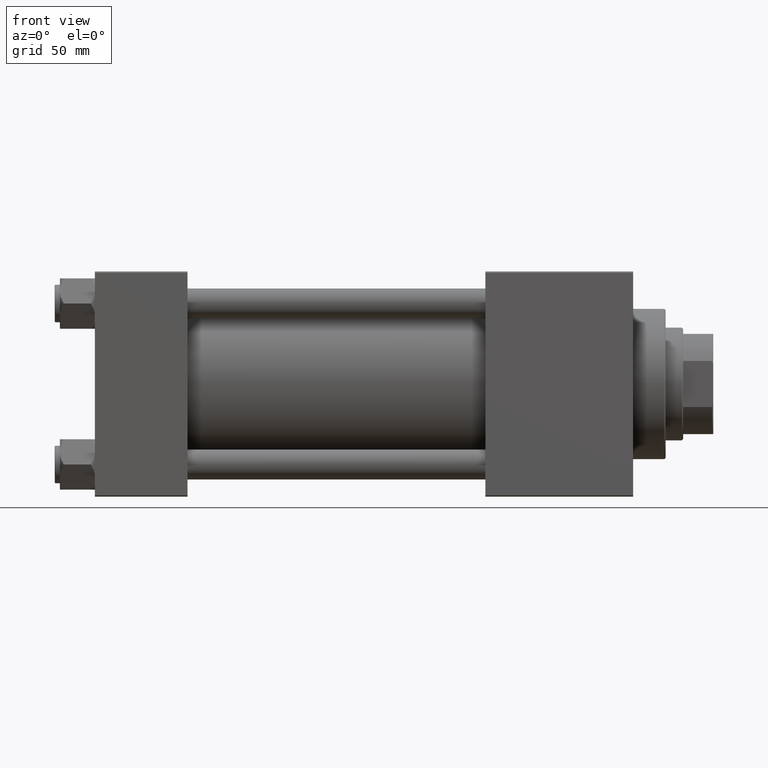
[diagram: clean part render]
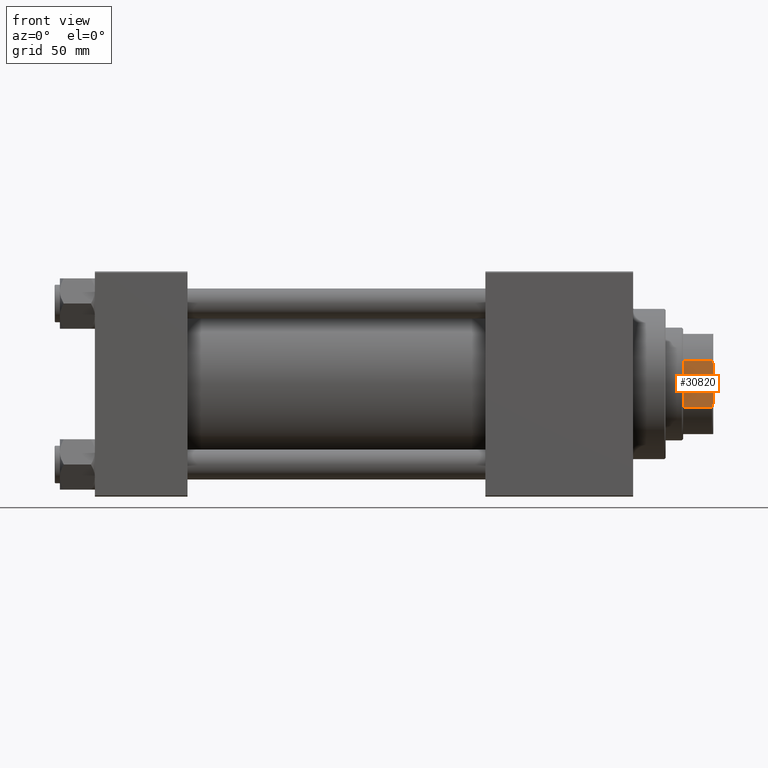
[diagram: same view with one face highlighted and labeled with its STEP entity id]
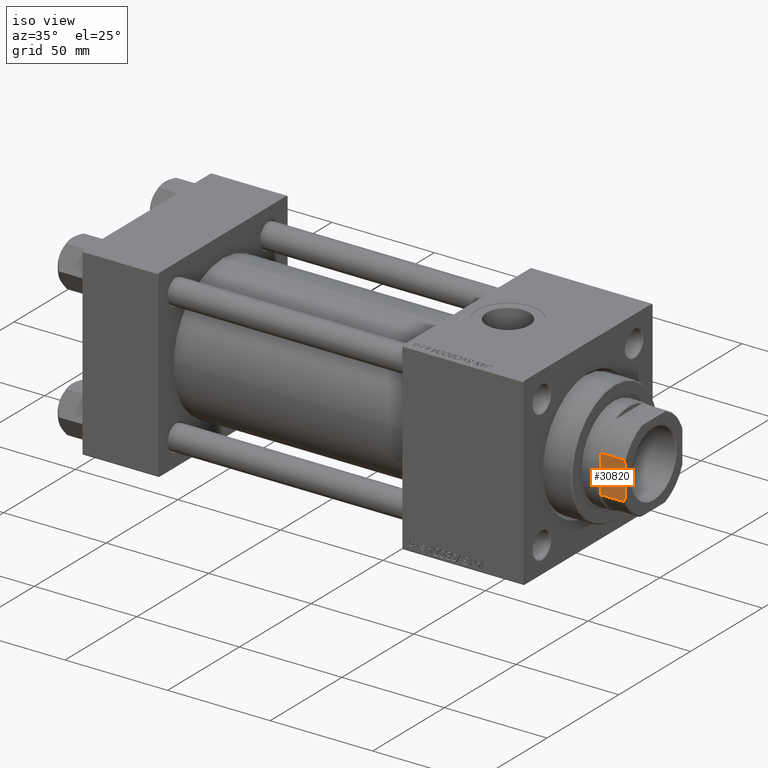
[diagram: same view with one face highlighted and labeled with its STEP entity id]
A machine part, front view. The second image highlights one B-rep face of the part: STEP entity #30820.
A second angle (iso view) of the same face is appended — the face is thin or edge-on in the first view.
In plain terms, the highlighted planar face has unit normal (0, 1, 0).
Its self-contained STEP definition (entity closure, byte-faithful):
#1905 = ORIENTED_EDGE ( 'NONE', *, *, #33054, .T. ) ;
#3045 = CARTESIAN_POINT ( 'NONE',  ( 9.165151389911670776, 20.00000000000000000, 198.0000000000001137 ) ) ;
#3239 = EDGE_LOOP ( 'NONE', ( #46034, #25699, #24217, #12055, #8752, #1905 ) ) ;
#4533 = LINE ( 'NONE', #40922, #31973 ) ;
#4605 = VECTOR ( 'NONE', #45751, 1000.000000000000000 ) ;
#6495 = CARTESIAN_POINT ( 'NONE',  ( -7.889866919029960179, 20.00000000000000355, 210.0000000000000284 ) ) ;
#6799 = CARTESIAN_POINT ( 'NONE',  ( -8.743570658524422612, 20.00000000000000355, 209.6756296011925542 ) ) ;
#6870 = DIRECTION ( 'NONE',  ( -1.000000000000000000, -0.000000000000000000, -0.000000000000000000 ) ) ;
#7429 = AXIS2_PLACEMENT_3D ( 'NONE', #17806, #10699, #33996 ) ;
#8752 = ORIENTED_EDGE ( 'NONE', *, *, #44856, .T. ) ;
#10668 = CARTESIAN_POINT ( 'NONE',  ( -20.00000000000000711, 20.00000000000000355, 198.0000000000000000 ) ) ;
#10687 = VERTEX_POINT ( 'NONE', #27938 ) ;
#10699 = DIRECTION ( 'NONE',  ( 0.000000000000000000, -1.000000000000000000, 0.000000000000000000 ) ) ;
#11390 = CARTESIAN_POINT ( 'NONE',  ( -20.00000000000000711, 20.00000000000000355, 210.0000000000000284 ) ) ;
#11934 = B_SPLINE_CURVE_WITH_KNOTS ( 'NONE', 3,
 ( #13909, #6799, #33908, #41024 ),
 .UNSPECIFIED., .F., .F.,
 ( 4, 4 ),
 ( 0.000000000000000000, 0.001369799431183980334 ),
 .UNSPECIFIED. ) ;
#12055 = ORIENTED_EDGE ( 'NONE', *, *, #23609, .T. ) ;
#12150 = LINE ( 'NONE', #11390, #28505 ) ;
#12652 = DIRECTION ( 'NONE',  ( -0.000000000000000000, -0.000000000000000000, 1.000000000000000000 ) ) ;
#13909 = CARTESIAN_POINT ( 'NONE',  ( -9.165151389911670776, 20.00000000000000355, 209.5000000000001137 ) ) ;
#17668 = EDGE_CURVE ( 'NONE', #37155, #10687, #19117, .T. ) ;
#17806 = CARTESIAN_POINT ( 'NONE',  ( -20.00000000000000711, 20.00000000000000355, 210.0000000000000284 ) ) ;
#18525 = LINE ( 'NONE', #10668, #24165 ) ;
#19117 = LINE ( 'NONE', #30258, #4605 ) ;
#19191 = VERTEX_POINT ( 'NONE', #33971 ) ;
#20377 = CARTESIAN_POINT ( 'NONE',  ( 8.743570658524438599, 20.00000000000000355, 209.6756296011925542 ) ) ;
#22413 = CARTESIAN_POINT ( 'NONE',  ( 8.318618722654566255, 20.00000000000000355, 209.8426607129352703 ) ) ;
#23609 = EDGE_CURVE ( 'NONE', #37155, #19191, #18525, .T. ) ;
#24165 = VECTOR ( 'NONE', #6870, 1000.000000000000000 ) ;
#24217 = ORIENTED_EDGE ( 'NONE', *, *, #17668, .F. ) ;
#25699 = ORIENTED_EDGE ( 'NONE', *, *, #37872, .T. ) ;
#26218 = CARTESIAN_POINT ( 'NONE',  ( 7.889866919029989489, 20.00000000000000355, 210.0000000000000284 ) ) ;
#27938 = CARTESIAN_POINT ( 'NONE',  ( 9.165151389911672553, 20.00000000000000355, 209.5000000000001137 ) ) ;
#28505 = VECTOR ( 'NONE', #34693, 1000.000000000000000 ) ;
#30258 = CARTESIAN_POINT ( 'NONE',  ( 9.165151389911672553, 20.00000000000000355, -0.001000000000001000089 ) ) ;
#30820 = ADVANCED_FACE ( 'NONE', ( #49722 ), #37312, .F. ) ;
#31177 = EDGE_CURVE ( 'NONE', #39205, #42813, #12150, .T. ) ;
#31973 = VECTOR ( 'NONE', #12652, 1000.000000000000000 ) ;
#33054 = EDGE_CURVE ( 'NONE', #49004, #42813, #11934, .T. ) ;
#33908 = CARTESIAN_POINT ( 'NONE',  ( -8.318618722654560926, 20.00000000000000355, 209.8426607129352703 ) ) ;
#33971 = CARTESIAN_POINT ( 'NONE',  ( -9.165151389911667223, 20.00000000000000355, 198.0000000000001137 ) ) ;
#33996 = DIRECTION ( 'NONE',  ( 0.000000000000000000, -0.000000000000000000, -1.000000000000000000 ) ) ;
#34693 = DIRECTION ( 'NONE',  ( -1.000000000000000000, -0.000000000000000000, -0.000000000000000000 ) ) ;
#35835 = CARTESIAN_POINT ( 'NONE',  ( 9.165151389911672553, 20.00000000000000355, 209.5000000000001137 ) ) ;
#37155 = VERTEX_POINT ( 'NONE', #3045 ) ;
#37312 = PLANE ( 'NONE',  #7429 ) ;
#37872 = EDGE_CURVE ( 'NONE', #39205, #10687, #46695, .T. ) ;
#39205 = VERTEX_POINT ( 'NONE', #43400 ) ;
#40922 = CARTESIAN_POINT ( 'NONE',  ( -9.165151389911670776, 20.00000000000000355, -0.001000000000001000089 ) ) ;
#41024 = CARTESIAN_POINT ( 'NONE',  ( -7.889866919029960179, 20.00000000000000355, 210.0000000000000284 ) ) ;
#42813 = VERTEX_POINT ( 'NONE', #6495 ) ;
#43400 = CARTESIAN_POINT ( 'NONE',  ( 7.889866919029989489, 20.00000000000000355, 210.0000000000000284 ) ) ;
#44856 = EDGE_CURVE ( 'NONE', #19191, #49004, #4533, .T. ) ;
#45330 = CARTESIAN_POINT ( 'NONE',  ( -9.165151389911670776, 20.00000000000000355, 209.5000000000001137 ) ) ;
#45751 = DIRECTION ( 'NONE',  ( -0.000000000000000000, -0.000000000000000000, 1.000000000000000000 ) ) ;
#46034 = ORIENTED_EDGE ( 'NONE', *, *, #31177, .F. ) ;
#46695 = B_SPLINE_CURVE_WITH_KNOTS ( 'NONE', 3,
 ( #26218, #22413, #20377, #35835 ),
 .UNSPECIFIED., .F., .F.,
 ( 4, 4 ),
 ( 1.734723475976806902E-18, 0.001369799431183957783 ),
 .UNSPECIFIED. ) ;
#49004 = VERTEX_POINT ( 'NONE', #45330 ) ;
#49722 = FACE_OUTER_BOUND ( 'NONE', #3239, .T. ) ;